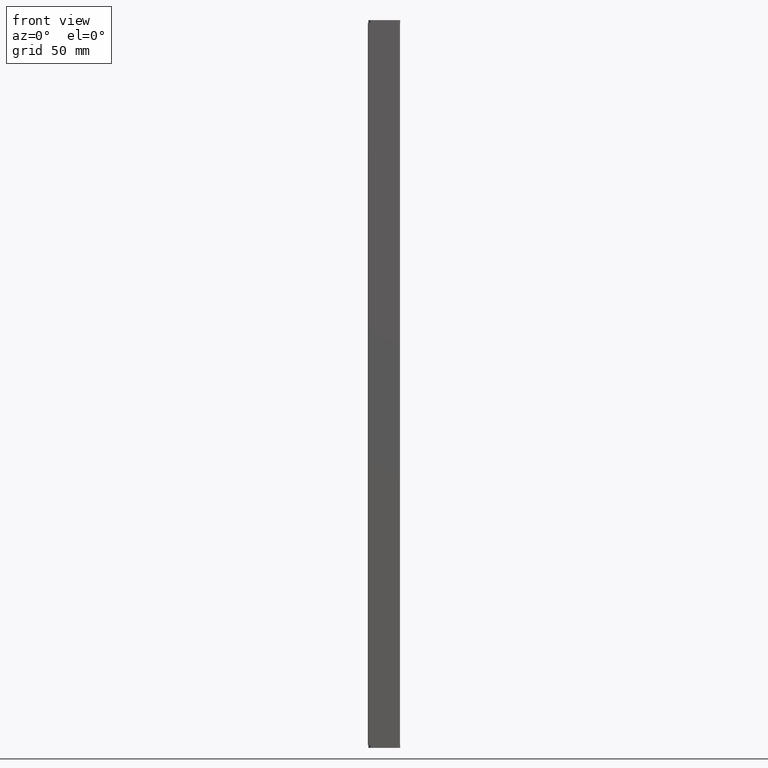
[diagram: clean part render]
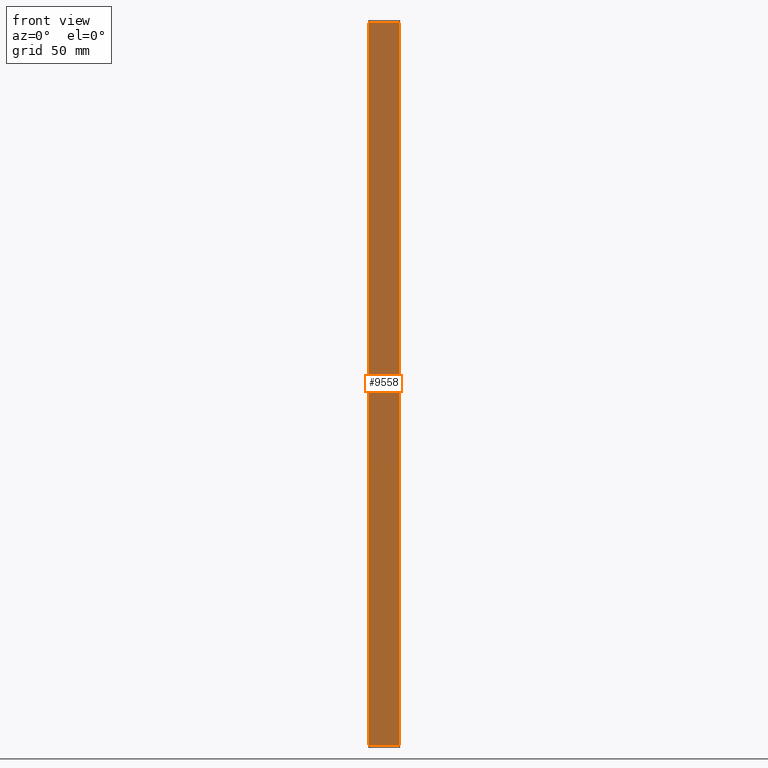
[diagram: same view with one face highlighted and labeled with its STEP entity id]
A machine part, front view. The second image highlights one B-rep face of the part: STEP entity #9558.
In plain terms, the highlighted planar face has unit normal (-0, 1, 0).
Its self-contained STEP definition (entity closure, byte-faithful):
#2523 = ORIENTED_EDGE ( 'NONE', *, *, #5130, .F. ) ;
#2537 = ORIENTED_EDGE ( 'NONE', *, *, #5161, .F. ) ;
#2549 = ORIENTED_EDGE ( 'NONE', *, *, #5188, .F. ) ;
#2576 = ORIENTED_EDGE ( 'NONE', *, *, #5138, .T. ) ;
#5130 = EDGE_CURVE ( 'NONE', #6198, #6200, #19683, .T. ) ;
#5138 = EDGE_CURVE ( 'NONE', #6198, #6197, #19727, .T. ) ;
#5161 = EDGE_CURVE ( 'NONE', #6200, #6113, #19749, .T. ) ;
#5188 = EDGE_CURVE ( 'NONE', #6113, #6197, #19881, .T. ) ;
#6113 = VERTEX_POINT ( 'NONE', #23618 ) ;
#6197 = VERTEX_POINT ( 'NONE', #23728 ) ;
#6198 = VERTEX_POINT ( 'NONE', #23714 ) ;
#6200 = VERTEX_POINT ( 'NONE', #23752 ) ;
#7689 = EDGE_LOOP ( 'NONE', ( #2537, #2523, #2576, #2549 ) ) ;
#9558 = ADVANCED_FACE ( 'NONE', ( #29494 ), #29498, .F. ) ;
#11464 = VECTOR ( 'NONE', #19810, 1000.000000000000000 ) ;
#11477 = VECTOR ( 'NONE', #19680, 1000.000000000000000 ) ;
#11541 = VECTOR ( 'NONE', #19728, 1000.000000000000000 ) ;
#11617 = VECTOR ( 'NONE', #19862, 1000.000000000000000 ) ;
#19671 = CARTESIAN_POINT ( 'NONE',  ( 734.7966921641410600, 255.2107092558805700, 221.5499999999999800 ) ) ;
#19680 = DIRECTION ( 'NONE',  ( 0.0000000000000000000, 0.0000000000000000000, 1.000000000000000000 ) ) ;
#19683 = LINE ( 'NONE', #19671, #11477 ) ;
#19716 = CARTESIAN_POINT ( 'NONE',  ( 526.8446046221007500, 255.2107092558806300, -102.4500000000000000 ) ) ;
#19727 = LINE ( 'NONE', #19716, #11541 ) ;
#19728 = DIRECTION ( 'NONE',  ( 1.000000000000000000, 0.0000000000000000000, -0.0000000000000000000 ) ) ;
#19749 = LINE ( 'NONE', #19808, #11464 ) ;
#19808 = CARTESIAN_POINT ( 'NONE',  ( 716.9472643408455500, 255.2107092558806300, 219.0000000000000000 ) ) ;
#19810 = DIRECTION ( 'NONE',  ( 1.000000000000000000, 0.0000000000000000000, -0.0000000000000000000 ) ) ;
#19862 = DIRECTION ( 'NONE',  ( -0.0000000000000000000, -0.0000000000000000000, -1.000000000000000000 ) ) ;
#19873 = CARTESIAN_POINT ( 'NONE',  ( 748.0966921641409000, 255.2107092558806900, 221.5499999999999800 ) ) ;
#19881 = LINE ( 'NONE', #19873, #11617 ) ;
#23618 = CARTESIAN_POINT ( 'NONE',  ( 748.0966921641409000, 255.2107092558806300, 219.0000000000000000 ) ) ;
#23714 = CARTESIAN_POINT ( 'NONE',  ( 734.7966921641410600, 255.2107092558806300, -102.4500000000000200 ) ) ;
#23728 = CARTESIAN_POINT ( 'NONE',  ( 748.0966921641409000, 255.2107092558806300, -102.4500000000000200 ) ) ;
#23752 = CARTESIAN_POINT ( 'NONE',  ( 734.7966921641410600, 255.2107092558806300, 219.0000000000000000 ) ) ;
#26499 = AXIS2_PLACEMENT_3D ( 'NONE', #29435, #29437, #29492 ) ;
#29435 = CARTESIAN_POINT ( 'NONE',  ( 741.4460531650579500, 255.2107092558806300, 221.5499999999999800 ) ) ;
#29437 = DIRECTION ( 'NONE',  ( -4.173770769267547200E-015, 1.000000000000000000, 0.0000000000000000000 ) ) ;
#29492 = DIRECTION ( 'NONE',  ( -1.000000000000000000, -4.173770769267547200E-015, 0.0000000000000000000 ) ) ;
#29494 = FACE_OUTER_BOUND ( 'NONE', #7689, .T. ) ;
#29498 = PLANE ( 'NONE',  #26499 ) ;